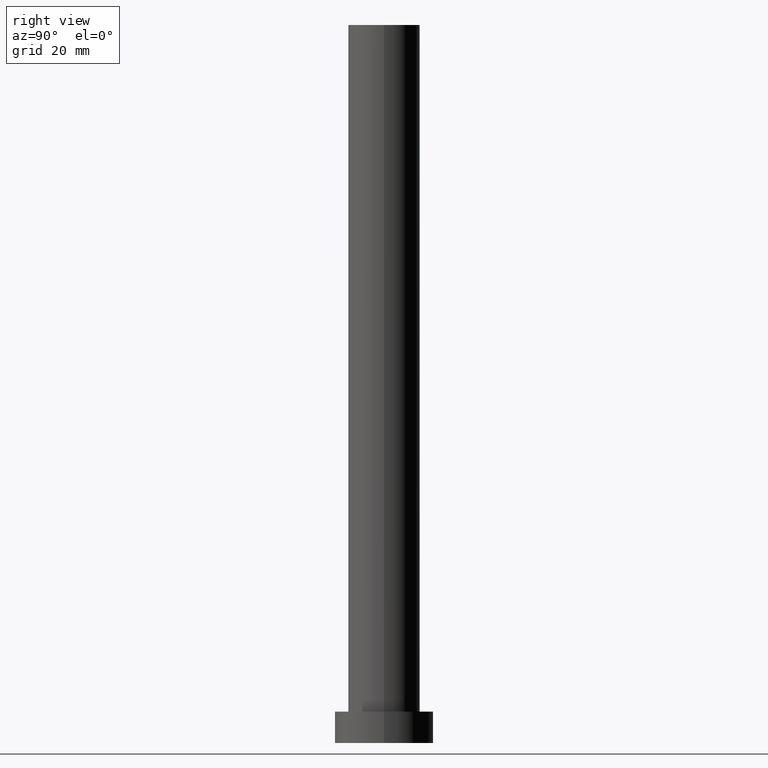
[diagram: clean part render]
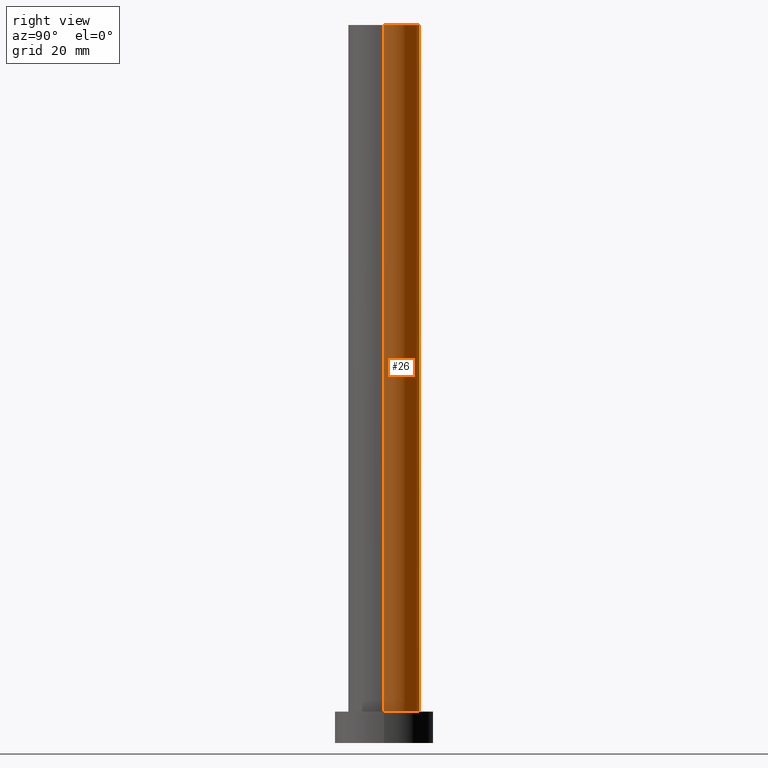
[diagram: same view with one face highlighted and labeled with its STEP entity id]
A machine part, right view. The second image highlights one B-rep face of the part: STEP entity #26.
In plain terms, the highlighted cylindrical surface (edge-blend (fillet) strip) has radius 8 mm, axis along (-0, -0, -1).
Its self-contained STEP definition (entity closure, byte-faithful):
#1 = ORIENTED_EDGE ( 'NONE', *, *, #70, .F. ) ;
#12 = LINE ( 'NONE', #80, #158 ) ;
#14 = VERTEX_POINT ( 'NONE', #41 ) ;
#26 = ADVANCED_FACE ( 'NONE', ( #203 ), #186, .T. ) ;
#39 = VERTEX_POINT ( 'NONE', #107 ) ;
#41 = CARTESIAN_POINT ( 'NONE',  ( 8.000000000000000000, 9.797174393178825657E-16, 160.0000000000000000 ) ) ;
#54 = DIRECTION ( 'NONE',  ( 1.000000000000000000, 0.000000000000000000, 0.000000000000000000 ) ) ;
#62 = ORIENTED_EDGE ( 'NONE', *, *, #171, .T. ) ;
#70 = EDGE_CURVE ( 'NONE', #136, #39, #235, .T. ) ;
#72 = VECTOR ( 'NONE', #168, 1000.000000000000000 ) ;
#76 = CARTESIAN_POINT ( 'NONE',  ( 0.000000000000000000, 0.000000000000000000, 7.000000000000000000 ) ) ;
#80 = CARTESIAN_POINT ( 'NONE',  ( 8.000000000000000000, 9.797174393178825657E-16, 160.0000000000000000 ) ) ;
#86 = EDGE_CURVE ( 'NONE', #14, #136, #194, .T. ) ;
#88 = CIRCLE ( 'NONE', #219, 8.000000000000000000 ) ;
#89 = DIRECTION ( 'NONE',  ( 0.000000000000000000, 0.000000000000000000, 1.000000000000000000 ) ) ;
#93 = CARTESIAN_POINT ( 'NONE',  ( 8.000000000000000000, 9.797174393178825657E-16, 7.000000000000000000 ) ) ;
#107 = CARTESIAN_POINT ( 'NONE',  ( -8.000000000000000000, 0.000000000000000000, 7.000000000000000000 ) ) ;
#114 = CARTESIAN_POINT ( 'NONE',  ( 0.000000000000000000, 0.000000000000000000, 160.0000000000000000 ) ) ;
#120 = DIRECTION ( 'NONE',  ( -0.000000000000000000, -0.000000000000000000, -1.000000000000000000 ) ) ;
#121 = EDGE_LOOP ( 'NONE', ( #198, #181, #62, #1 ) ) ;
#131 = CARTESIAN_POINT ( 'NONE',  ( -8.000000000000000000, 0.000000000000000000, 160.0000000000000000 ) ) ;
#135 = CARTESIAN_POINT ( 'NONE',  ( -8.000000000000000000, 0.000000000000000000, 160.0000000000000000 ) ) ;
#136 = VERTEX_POINT ( 'NONE', #131 ) ;
#158 = VECTOR ( 'NONE', #120, 1000.000000000000000 ) ;
#168 = DIRECTION ( 'NONE',  ( -0.000000000000000000, -0.000000000000000000, -1.000000000000000000 ) ) ;
#171 = EDGE_CURVE ( 'NONE', #201, #39, #88, .T. ) ;
#181 = ORIENTED_EDGE ( 'NONE', *, *, #253, .T. ) ;
#186 = CYLINDRICAL_SURFACE ( 'NONE', #223, 8.000000000000000000 ) ;
#189 = DIRECTION ( 'NONE',  ( -0.000000000000000000, -0.000000000000000000, -1.000000000000000000 ) ) ;
#194 = CIRCLE ( 'NONE', #228, 8.000000000000000000 ) ;
#198 = ORIENTED_EDGE ( 'NONE', *, *, #86, .F. ) ;
#201 = VERTEX_POINT ( 'NONE', #93 ) ;
#203 = FACE_OUTER_BOUND ( 'NONE', #121, .T. ) ;
#204 = CARTESIAN_POINT ( 'NONE',  ( 0.000000000000000000, 0.000000000000000000, 160.0000000000000000 ) ) ;
#210 = DIRECTION ( 'NONE',  ( 1.000000000000000000, 0.000000000000000000, 0.000000000000000000 ) ) ;
#219 = AXIS2_PLACEMENT_3D ( 'NONE', #76, #224, #210 ) ;
#223 = AXIS2_PLACEMENT_3D ( 'NONE', #204, #189, #241 ) ;
#224 = DIRECTION ( 'NONE',  ( 0.000000000000000000, 0.000000000000000000, 1.000000000000000000 ) ) ;
#228 = AXIS2_PLACEMENT_3D ( 'NONE', #114, #89, #54 ) ;
#235 = LINE ( 'NONE', #135, #72 ) ;
#241 = DIRECTION ( 'NONE',  ( -1.000000000000000000, 0.000000000000000000, 0.000000000000000000 ) ) ;
#253 = EDGE_CURVE ( 'NONE', #14, #201, #12, .T. ) ;